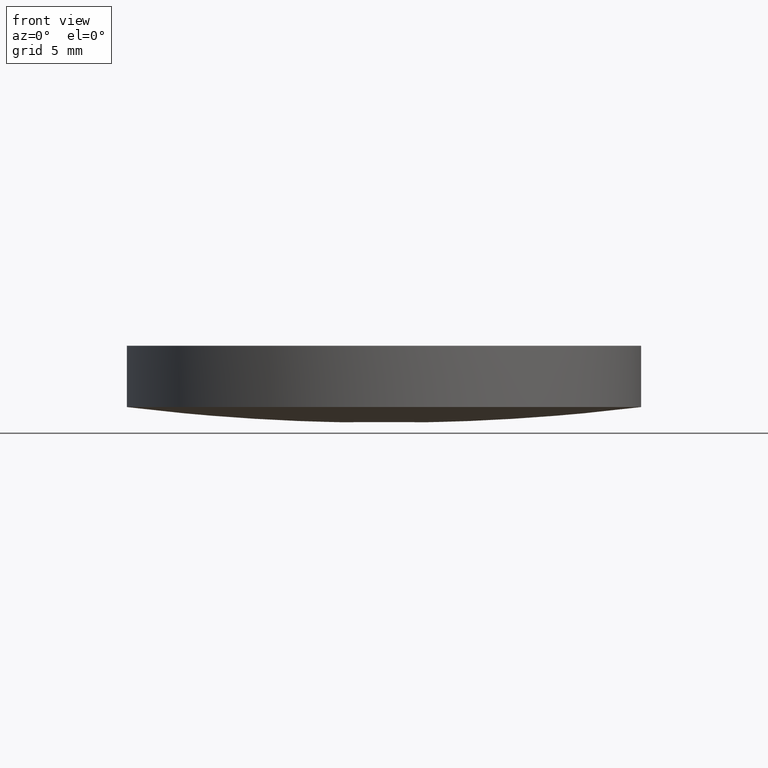
[diagram: clean part render]
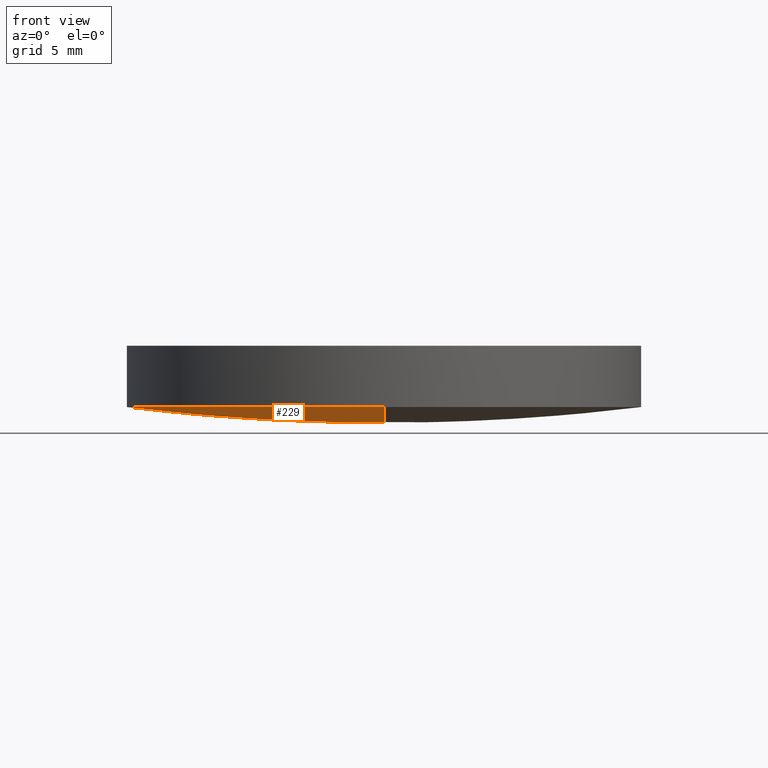
[diagram: same view with one face highlighted and labeled with its STEP entity id]
A machine part, front view. The second image highlights one B-rep face of the part: STEP entity #229.
In plain terms, the highlighted face is a freeform B-spline surface patch.
Its self-contained STEP definition (entity closure, byte-faithful):
#6 = CARTESIAN_POINT ( 'NONE',  ( -7.187737991352404900E-015, 12.70000000000003700, 0.7738472252775887600 ) ) ;
#11 = CIRCLE ( 'NONE', #31, 12.69999999999999900 ) ;
#31 = AXIS2_PLACEMENT_3D ( 'NONE', #172, #148, #51 ) ;
#38 = DIRECTION ( 'NONE',  ( -0.0000000000000000000, -0.0000000000000000000, -1.000000000000000000 ) ) ;
#51 = DIRECTION ( 'NONE',  ( 1.000000000000000000, 8.881784197001252300E-016, 0.0000000000000000000 ) ) ;
#54 = CARTESIAN_POINT ( 'NONE',  ( -3.989863994746656300E-014, -12.85163307389534600, 0.7925073641889719400 ) ) ;
#55 = CARTESIAN_POINT ( 'NONE',  ( -4.282779587646924600, -4.305625555928870100, -0.2655102227782278300 ) ) ;
#59 = CARTESIAN_POINT ( 'NONE',  ( -3.295974604355933500E-014, 12.85163307389536200, 0.7925073641889719400 ) ) ;
#69 = EDGE_CURVE ( 'NONE', #152, #134, #11, .T. ) ;
#76 = CARTESIAN_POINT ( 'NONE',  ( -8.471195892815204700, -12.85163307389534500, 1.051903366798569600 ) ) ;
#83 = CARTESIAN_POINT ( 'NONE',  ( -3.642919299551294900E-014, 4.305625555928887000, -0.2655102227782291100 ) ) ;
#84 = CARTESIAN_POINT ( 'NONE',  ( -12.80824930132938300, 4.305625555928890500, 0.5196272868001348100 ) ) ;
#95 = CARTESIAN_POINT ( 'NONE',  ( -1.424402699795791500E-014, -12.70000000000002100, 0.7738472252775887600 ) ) ;
#100 = CARTESIAN_POINT ( 'NONE',  ( -8.471195892815197600, 12.85163307389536200, 1.051903366798569600 ) ) ;
#107 = ORIENTED_EDGE ( 'NONE', *, *, #217, .F. ) ;
#110 =( BOUNDED_SURFACE ( )  B_SPLINE_SURFACE ( 3, 3, ( 
 ( #176, #76, #189, #54 ),
 ( #190, #221, #55, #155 ),
 ( #84, #124, #125, #83 ),
 ( #141, #100, #191, #59 ) ),
 .UNSPECIFIED., .F., .F., .T. ) 
 B_SPLINE_SURFACE_WITH_KNOTS ( ( 4, 4 ),
 ( 4, 4 ),
 ( 0.0000000000000000000, 1.000000000000000000 ),
 ( 0.0000000000000000000, 1.000000000000000000 ),
 .UNSPECIFIED. ) 
 GEOMETRIC_REPRESENTATION_ITEM ( )  RATIONAL_B_SPLINE_SURFACE ( (
 ( 1.000000000000000000, 0.9987509816368461700, 0.9987509816368461700, 1.000000000000000000),
 ( 0.9949489651740663900, 0.9937062556461631100, 0.9937062556461631100, 0.9949489651740663900),
 ( 0.9949489651740663900, 0.9937062556461631100, 0.9937062556461631100, 0.9949489651740663900),
 ( 1.000000000000000000, 0.9987509816368461700, 0.9987509816368461700, 1.000000000000000000) ) ) 
 REPRESENTATION_ITEM ( '' )  SURFACE ( )  );
#117 = CARTESIAN_POINT ( 'NONE',  ( 4.996003610813200500E-016, 2.442490654175340100E-015, 0.7738472252775809900 ) ) ;
#124 = CARTESIAN_POINT ( 'NONE',  ( -8.557535269768337100, 4.305625555928888700, -0.003470427068716972100 ) ) ;
#125 = CARTESIAN_POINT ( 'NONE',  ( -4.282779587646920100, 4.305625555928887000, -0.2655102227782270000 ) ) ;
#131 = AXIS2_PLACEMENT_3D ( 'NONE', #117, #38, #173 ) ;
#134 = VERTEX_POINT ( 'NONE', #6 ) ;
#139 = FACE_OUTER_BOUND ( 'NONE', #164, .T. ) ;
#141 = CARTESIAN_POINT ( 'NONE',  ( -12.67902327658322600, 12.85163307389536400, 1.569723400905984200 ) ) ;
#143 = AXIS2_PLACEMENT_3D ( 'NONE', #186, #198, #150 ) ;
#148 = DIRECTION ( 'NONE',  ( -0.0000000000000000000, -0.0000000000000000000, -1.000000000000000000 ) ) ;
#150 = DIRECTION ( 'NONE',  ( -2.778066538033659800E-016, -1.000000000000000000, 0.0000000000000000000 ) ) ;
#152 = VERTEX_POINT ( 'NONE', #196 ) ;
#155 = CARTESIAN_POINT ( 'NONE',  ( -3.989863994746655700E-014, -4.305625555928871000, -0.2655102227782299400 ) ) ;
#158 = ORIENTED_EDGE ( 'NONE', *, *, #204, .T. ) ;
#164 = EDGE_LOOP ( 'NONE', ( #107, #158, #184 ) ) ;
#165 = VERTEX_POINT ( 'NONE', #95 ) ;
#172 = CARTESIAN_POINT ( 'NONE',  ( 4.996003610813200500E-016, 2.442490654175340100E-015, 0.7738472252775809900 ) ) ;
#173 = DIRECTION ( 'NONE',  ( 1.000000000000000000, 0.0000000000000000000, 0.0000000000000000000 ) ) ;
#176 = CARTESIAN_POINT ( 'NONE',  ( -12.67902327658323400, -12.85163307389534300, 1.569723400905984200 ) ) ;
#184 = ORIENTED_EDGE ( 'NONE', *, *, #69, .T. ) ;
#185 = CIRCLE ( 'NONE', #143, 104.5999999999999900 ) ;
#186 = CARTESIAN_POINT ( 'NONE',  ( 1.421085471520200100E-014, 1.421085471520200100E-014, 104.5999999999999900 ) ) ;
#189 = CARTESIAN_POINT ( 'NONE',  ( -4.239569421452067400, -12.85163307389534500, 0.7925073641889740500 ) ) ;
#190 = CARTESIAN_POINT ( 'NONE',  ( -12.80824930132938600, -4.305625555928867400, 0.5196272868001337000 ) ) ;
#191 = CARTESIAN_POINT ( 'NONE',  ( -4.239569421452060300, 12.85163307389536200, 0.7925073641889740500 ) ) ;
#196 = CARTESIAN_POINT ( 'NONE',  ( -12.69999999999999900, 3.997792089092478900E-015, 0.7738472252775809900 ) ) ;
#198 = DIRECTION ( 'NONE',  ( 1.000000000000000000, -2.778066538033659800E-016, -2.400814875991999800E-016 ) ) ;
#204 = EDGE_CURVE ( 'NONE', #165, #152, #224, .T. ) ;
#217 = EDGE_CURVE ( 'NONE', #165, #134, #185, .T. ) ;
#221 = CARTESIAN_POINT ( 'NONE',  ( -8.557535269768340700, -4.305625555928868300, -0.003470427068718163900 ) ) ;
#224 = CIRCLE ( 'NONE', #131, 12.69999999999999900 ) ;
#229 = ADVANCED_FACE ( 'NONE', ( #139 ), #110, .T. ) ;